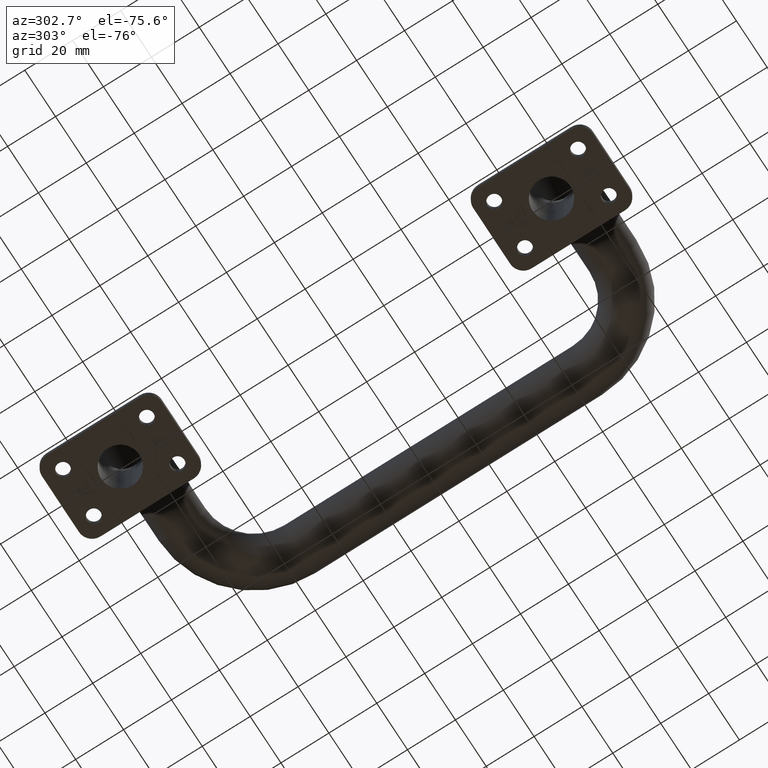
[diagram: clean part render]
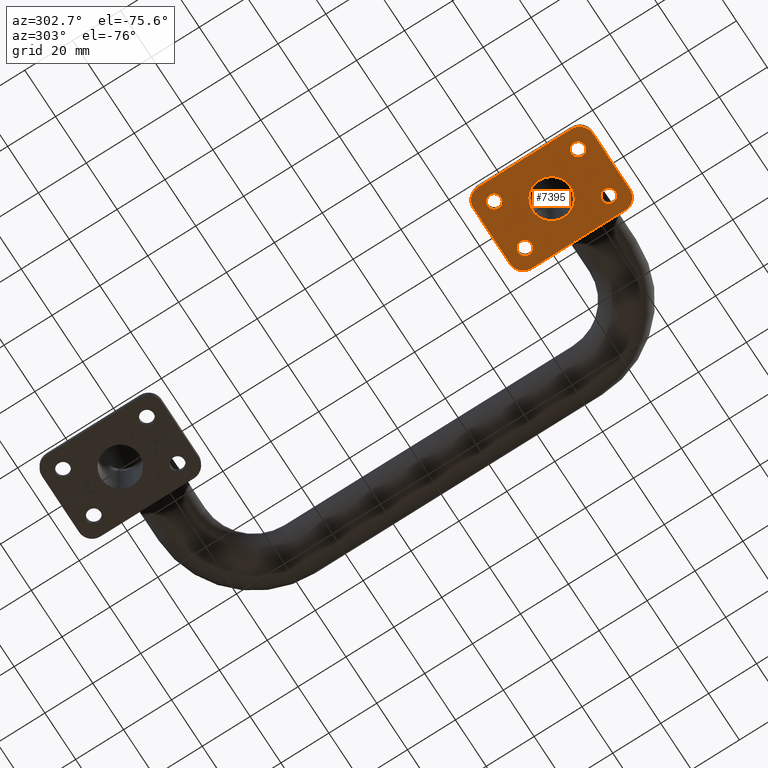
[diagram: same view with one face highlighted and labeled with its STEP entity id]
A machine part, auxiliary view. The second image highlights one B-rep face of the part: STEP entity #7395.
In plain terms, the highlighted planar face has unit normal (-0, 0, 1).
Its self-contained STEP definition (entity closure, byte-faithful):
#149 = DIRECTION ( 'NONE',  ( 1.000000000000000000, 0.000000000000000000, 0.000000000000000000 ) ) ;
#242 = ORIENTED_EDGE ( 'NONE', *, *, #3521, .T. ) ;
#325 = EDGE_CURVE ( 'NONE', #1543, #6372, #3266, .T. ) ;
#493 = CARTESIAN_POINT ( 'NONE',  ( -1.393068780271001328E-15, -90.00000000000000000, 1.249000902703300950E-14 ) ) ;
#517 = CARTESIAN_POINT ( 'NONE',  ( -1.393068780271001328E-15, -90.00000000000000000, 1.249000902703300950E-14 ) ) ;
#519 = EDGE_CURVE ( 'NONE', #9737, #9792, #2941, .T. ) ;
#527 = DIRECTION ( 'NONE',  ( 0.000000000000000000, 1.387778780781445676E-16, 1.000000000000000000 ) ) ;
#555 = ORIENTED_EDGE ( 'NONE', *, *, #5367, .T. ) ;
#642 = DIRECTION ( 'NONE',  ( -0.000000000000000000, 1.387778780781445676E-16, 1.000000000000000000 ) ) ;
#657 = FACE_BOUND ( 'NONE', #2100, .T. ) ;
#725 = VERTEX_POINT ( 'NONE', #9029 ) ;
#744 = ORIENTED_EDGE ( 'NONE', *, *, #6889, .T. ) ;
#785 = VERTEX_POINT ( 'NONE', #2916 ) ;
#910 = AXIS2_PLACEMENT_3D ( 'NONE', #6845, #6941, #8381 ) ;
#920 = EDGE_LOOP ( 'NONE', ( #1130, #1210, #7603, #7582, #9967, #7893, #8713, #6164 ) ) ;
#942 = DIRECTION ( 'NONE',  ( -1.000000000000000000, 0.000000000000000000, 0.000000000000000000 ) ) ;
#1021 = DIRECTION ( 'NONE',  ( -0.000000000000000000, 1.387778780781445676E-16, 1.000000000000000000 ) ) ;
#1101 = EDGE_CURVE ( 'NONE', #725, #9116, #7396, .T. ) ;
#1130 = ORIENTED_EDGE ( 'NONE', *, *, #3905, .F. ) ;
#1144 = AXIS2_PLACEMENT_3D ( 'NONE', #2763, #9041, #5903 ) ;
#1179 = ORIENTED_EDGE ( 'NONE', *, *, #2748, .T. ) ;
#1210 = ORIENTED_EDGE ( 'NONE', *, *, #8468, .F. ) ;
#1212 = DIRECTION ( 'NONE',  ( 1.000000000000000000, 0.000000000000000000, 0.000000000000000000 ) ) ;
#1260 = CIRCLE ( 'NONE', #910, 5.500000000000000000 ) ;
#1275 = CARTESIAN_POINT ( 'NONE',  ( -12.00000000000001066, -70.50000000000000000, 9.783840404509192012E-15 ) ) ;
#1357 = CARTESIAN_POINT ( 'NONE',  ( 12.79999999999999183, -72.49999999999998579, 1.006139616066547957E-14 ) ) ;
#1525 = CIRCLE ( 'NONE', #4496, 5.500000000000000000 ) ;
#1543 = VERTEX_POINT ( 'NONE', #4742 ) ;
#1640 = FACE_OUTER_BOUND ( 'NONE', #920, .T. ) ;
#1662 = DIRECTION ( 'NONE',  ( 1.000000000000000000, 0.000000000000000000, 0.000000000000000000 ) ) ;
#1809 = DIRECTION ( 'NONE',  ( -1.000000000000000000, 0.000000000000000000, 0.000000000000000000 ) ) ;
#1922 = CARTESIAN_POINT ( 'NONE',  ( 9.999999999999998224, -107.4999999999999858, 1.491862189340053786E-14 ) ) ;
#1979 = VERTEX_POINT ( 'NONE', #6712 ) ;
#1983 = CARTESIAN_POINT ( 'NONE',  ( 12.79999999999999538, -107.4999999999999858, 1.491862189340053786E-14 ) ) ;
#1988 = CARTESIAN_POINT ( 'NONE',  ( 17.50000000000000000, -114.9999999999999858, 1.595945597898662527E-14 ) ) ;
#2035 = DIRECTION ( 'NONE',  ( -0.000000000000000000, 1.387778780781445676E-16, 1.000000000000000000 ) ) ;
#2068 = DIRECTION ( 'NONE',  ( -1.000000000000000000, 0.000000000000000000, 0.000000000000000000 ) ) ;
#2100 = EDGE_LOOP ( 'NONE', ( #4458, #3031 ) ) ;
#2146 = LINE ( 'NONE', #6370, #6222 ) ;
#2194 = ORIENTED_EDGE ( 'NONE', *, *, #5421, .T. ) ;
#2398 = AXIS2_PLACEMENT_3D ( 'NONE', #3277, #2593, #1809 ) ;
#2463 = CIRCLE ( 'NONE', #6104, 2.799999999999997158 ) ;
#2496 = EDGE_CURVE ( 'NONE', #9792, #9737, #7069, .T. ) ;
#2593 = DIRECTION ( 'NONE',  ( -0.000000000000000000, 1.387778780781445676E-16, 1.000000000000000000 ) ) ;
#2645 = VERTEX_POINT ( 'NONE', #8662 ) ;
#2748 = EDGE_CURVE ( 'NONE', #3466, #5409, #9002, .T. ) ;
#2763 = CARTESIAN_POINT ( 'NONE',  ( -10.00000000000000178, -107.4999999999999858, 1.491862189340053786E-14 ) ) ;
#2857 = VERTEX_POINT ( 'NONE', #3899 ) ;
#2916 = CARTESIAN_POINT ( 'NONE',  ( 12.00000000000000000, -114.9999999999999858, 1.595945597898662527E-14 ) ) ;
#2941 = CIRCLE ( 'NONE', #7353, 2.799999999999997158 ) ;
#2961 = AXIS2_PLACEMENT_3D ( 'NONE', #517, #2035, #7449 ) ;
#3031 = ORIENTED_EDGE ( 'NONE', *, *, #519, .T. ) ;
#3119 = AXIS2_PLACEMENT_3D ( 'NONE', #4754, #7818, #149 ) ;
#3266 = CIRCLE ( 'NONE', #2398, 2.799999999999997602 ) ;
#3277 = CARTESIAN_POINT ( 'NONE',  ( 9.999999999999994671, -72.49999999999998579, 1.006139616066547957E-14 ) ) ;
#3329 = CARTESIAN_POINT ( 'NONE',  ( 9.999999999999998224, -107.4999999999999858, 1.491862189340053786E-14 ) ) ;
#3431 = DIRECTION ( 'NONE',  ( -1.000000000000000000, 0.000000000000000000, 0.000000000000000000 ) ) ;
#3436 = CARTESIAN_POINT ( 'NONE',  ( 17.49999999999999645, -64.99999999999998579, 9.020562075079395313E-15 ) ) ;
#3466 = VERTEX_POINT ( 'NONE', #6623 ) ;
#3521 = EDGE_CURVE ( 'NONE', #2857, #2645, #8367, .T. ) ;
#3571 = DIRECTION ( 'NONE',  ( 1.000000000000000000, 0.000000000000000000, 0.000000000000000000 ) ) ;
#3781 = EDGE_CURVE ( 'NONE', #8009, #785, #5258, .T. ) ;
#3836 = EDGE_LOOP ( 'NONE', ( #1179, #744 ) ) ;
#3842 = AXIS2_PLACEMENT_3D ( 'NONE', #8641, #1021, #942 ) ;
#3899 = CARTESIAN_POINT ( 'NONE',  ( 8.000000000000000000, -90.00000000000000000, 1.249000902703300950E-14 ) ) ;
#3905 = EDGE_CURVE ( 'NONE', #1979, #9603, #6700, .T. ) ;
#4039 = CIRCLE ( 'NONE', #9310, 5.500000000000000000 ) ;
#4100 = EDGE_CURVE ( 'NONE', #5015, #7943, #2146, .T. ) ;
#4109 = AXIS2_PLACEMENT_3D ( 'NONE', #8757, #4278, #8085 ) ;
#4220 = DIRECTION ( 'NONE',  ( 0.000000000000000000, 1.387778780781445676E-16, 1.000000000000000000 ) ) ;
#4226 = DIRECTION ( 'NONE',  ( -0.000000000000000000, 1.387778780781445676E-16, 1.000000000000000000 ) ) ;
#4278 = DIRECTION ( 'NONE',  ( -0.000000000000000000, 1.387778780781445676E-16, 1.000000000000000000 ) ) ;
#4283 = CIRCLE ( 'NONE', #9172, 8.000000000000001776 ) ;
#4417 = EDGE_LOOP ( 'NONE', ( #6033, #2194 ) ) ;
#4458 = ORIENTED_EDGE ( 'NONE', *, *, #2496, .T. ) ;
#4496 = AXIS2_PLACEMENT_3D ( 'NONE', #1275, #4220, #5086 ) ;
#4616 = FACE_BOUND ( 'NONE', #4417, .T. ) ;
#4703 = CARTESIAN_POINT ( 'NONE',  ( -12.00000000000000178, -109.4999999999999858, 1.519617764955682699E-14 ) ) ;
#4742 = CARTESIAN_POINT ( 'NONE',  ( 7.199999999999997513, -72.49999999999998579, 1.006139616066547957E-14 ) ) ;
#4754 = CARTESIAN_POINT ( 'NONE',  ( 12.00000000000000000, -109.4999999999999858, 1.519617764955682699E-14 ) ) ;
#4785 = EDGE_CURVE ( 'NONE', #5613, #8009, #4039, .T. ) ;
#4895 = CARTESIAN_POINT ( 'NONE',  ( -12.00000000000001066, -64.99999999999998579, 9.020562075079395313E-15 ) ) ;
#4959 = DIRECTION ( 'NONE',  ( -0.000000000000000000, 1.387778780781445676E-16, 1.000000000000000000 ) ) ;
#5015 = VERTEX_POINT ( 'NONE', #7298 ) ;
#5086 = DIRECTION ( 'NONE',  ( 1.000000000000000000, 0.000000000000000000, 0.000000000000000000 ) ) ;
#5095 = CARTESIAN_POINT ( 'NONE',  ( -7.200000000000007283, -72.49999999999998579, 1.006139616066547957E-14 ) ) ;
#5113 = PLANE ( 'NONE',  #2961 ) ;
#5258 = LINE ( 'NONE', #1988, #6923 ) ;
#5323 = EDGE_CURVE ( 'NONE', #8294, #5613, #7856, .T. ) ;
#5347 = EDGE_CURVE ( 'NONE', #785, #5015, #5481, .T. ) ;
#5367 = EDGE_CURVE ( 'NONE', #2645, #2857, #4283, .T. ) ;
#5393 = AXIS2_PLACEMENT_3D ( 'NONE', #1922, #7963, #8807 ) ;
#5409 = VERTEX_POINT ( 'NONE', #1983 ) ;
#5421 = EDGE_CURVE ( 'NONE', #9116, #725, #2463, .T. ) ;
#5481 = CIRCLE ( 'NONE', #3119, 5.500000000000001776 ) ;
#5613 = VERTEX_POINT ( 'NONE', #6843 ) ;
#5664 = AXIS2_PLACEMENT_3D ( 'NONE', #3329, #4959, #6474 ) ;
#5838 = DIRECTION ( 'NONE',  ( 1.000000000000000000, 0.000000000000000000, 0.000000000000000000 ) ) ;
#5903 = DIRECTION ( 'NONE',  ( -1.000000000000000000, 0.000000000000000000, 0.000000000000000000 ) ) ;
#6029 = CARTESIAN_POINT ( 'NONE',  ( -10.00000000000000533, -72.49999999999998579, 1.006139616066547957E-14 ) ) ;
#6033 = ORIENTED_EDGE ( 'NONE', *, *, #1101, .T. ) ;
#6081 = CARTESIAN_POINT ( 'NONE',  ( 17.49999999999999645, -70.50000000000000000, 9.783840404509192012E-15 ) ) ;
#6104 = AXIS2_PLACEMENT_3D ( 'NONE', #7287, #4226, #3431 ) ;
#6164 = ORIENTED_EDGE ( 'NONE', *, *, #6683, .F. ) ;
#6203 = VECTOR ( 'NONE', #7787, 1000.000000000000000 ) ;
#6222 = VECTOR ( 'NONE', #8770, 1000.000000000000000 ) ;
#6246 = DIRECTION ( 'NONE',  ( 0.000000000000000000, 1.387778780781445676E-16, 1.000000000000000000 ) ) ;
#6370 = CARTESIAN_POINT ( 'NONE',  ( 17.50000000000000000, -114.9999999999999858, 1.595945597898662527E-14 ) ) ;
#6372 = VERTEX_POINT ( 'NONE', #1357 ) ;
#6474 = DIRECTION ( 'NONE',  ( -1.000000000000000000, 0.000000000000000000, 0.000000000000000000 ) ) ;
#6623 = CARTESIAN_POINT ( 'NONE',  ( 7.200000000000001066, -107.4999999999999858, 1.491862189340053786E-14 ) ) ;
#6660 = FACE_BOUND ( 'NONE', #7043, .T. ) ;
#6683 = EDGE_CURVE ( 'NONE', #9603, #8294, #1525, .T. ) ;
#6693 = CARTESIAN_POINT ( 'NONE',  ( -17.50000000000000711, -70.50000000000000000, 9.783840404509192012E-15 ) ) ;
#6700 = LINE ( 'NONE', #3436, #7766 ) ;
#6712 = CARTESIAN_POINT ( 'NONE',  ( 11.99999999999999467, -64.99999999999998579, 9.020562075079395313E-15 ) ) ;
#6843 = CARTESIAN_POINT ( 'NONE',  ( -17.50000000000000000, -109.4999999999999858, 1.519617764955682699E-14 ) ) ;
#6845 = CARTESIAN_POINT ( 'NONE',  ( 11.99999999999999467, -70.50000000000000000, 9.783840404509192012E-15 ) ) ;
#6889 = EDGE_CURVE ( 'NONE', #5409, #3466, #9798, .T. ) ;
#6923 = VECTOR ( 'NONE', #1212, 1000.000000000000000 ) ;
#6933 = ORIENTED_EDGE ( 'NONE', *, *, #325, .T. ) ;
#6941 = DIRECTION ( 'NONE',  ( 0.000000000000000000, 1.387778780781445676E-16, 1.000000000000000000 ) ) ;
#7043 = EDGE_LOOP ( 'NONE', ( #242, #555 ) ) ;
#7069 = CIRCLE ( 'NONE', #3842, 2.799999999999997158 ) ;
#7101 = CARTESIAN_POINT ( 'NONE',  ( -7.200000000000003730, -107.4999999999999858, 1.491862189340053786E-14 ) ) ;
#7287 = CARTESIAN_POINT ( 'NONE',  ( -10.00000000000000178, -107.4999999999999858, 1.491862189340053786E-14 ) ) ;
#7298 = CARTESIAN_POINT ( 'NONE',  ( 17.50000000000000000, -109.4999999999999858, 1.519617764955682699E-14 ) ) ;
#7322 = EDGE_CURVE ( 'NONE', #6372, #1543, #8935, .T. ) ;
#7353 = AXIS2_PLACEMENT_3D ( 'NONE', #6029, #642, #2068 ) ;
#7395 = ADVANCED_FACE ( 'NONE', ( #6660, #657, #8325, #4616, #8818, #1640 ), #5113, .F. ) ;
#7396 = CIRCLE ( 'NONE', #1144, 2.799999999999997158 ) ;
#7449 = DIRECTION ( 'NONE',  ( 1.000000000000000000, 0.000000000000000000, 0.000000000000000000 ) ) ;
#7582 = ORIENTED_EDGE ( 'NONE', *, *, #5347, .F. ) ;
#7603 = ORIENTED_EDGE ( 'NONE', *, *, #4100, .F. ) ;
#7766 = VECTOR ( 'NONE', #9602, 1000.000000000000000 ) ;
#7787 = DIRECTION ( 'NONE',  ( 1.387778780781445676E-16, -1.000000000000000000, 1.387778780781445676E-16 ) ) ;
#7818 = DIRECTION ( 'NONE',  ( 0.000000000000000000, 1.387778780781445676E-16, 1.000000000000000000 ) ) ;
#7856 = LINE ( 'NONE', #9370, #6203 ) ;
#7893 = ORIENTED_EDGE ( 'NONE', *, *, #4785, .F. ) ;
#7943 = VERTEX_POINT ( 'NONE', #6081 ) ;
#7963 = DIRECTION ( 'NONE',  ( -0.000000000000000000, 1.387778780781445676E-16, 1.000000000000000000 ) ) ;
#8009 = VERTEX_POINT ( 'NONE', #8457 ) ;
#8010 = AXIS2_PLACEMENT_3D ( 'NONE', #493, #8835, #3571 ) ;
#8085 = DIRECTION ( 'NONE',  ( -1.000000000000000000, 0.000000000000000000, 0.000000000000000000 ) ) ;
#8110 = ORIENTED_EDGE ( 'NONE', *, *, #7322, .T. ) ;
#8294 = VERTEX_POINT ( 'NONE', #6693 ) ;
#8325 = FACE_BOUND ( 'NONE', #9534, .T. ) ;
#8367 = CIRCLE ( 'NONE', #8010, 8.000000000000001776 ) ;
#8381 = DIRECTION ( 'NONE',  ( 1.000000000000000000, 0.000000000000000000, 0.000000000000000000 ) ) ;
#8457 = CARTESIAN_POINT ( 'NONE',  ( -12.00000000000000355, -114.9999999999999858, 1.595945597898662527E-14 ) ) ;
#8468 = EDGE_CURVE ( 'NONE', #7943, #1979, #1260, .T. ) ;
#8578 = CARTESIAN_POINT ( 'NONE',  ( -1.393068780271001328E-15, -90.00000000000000000, 1.249000902703300950E-14 ) ) ;
#8641 = CARTESIAN_POINT ( 'NONE',  ( -10.00000000000000533, -72.49999999999998579, 1.006139616066547957E-14 ) ) ;
#8662 = CARTESIAN_POINT ( 'NONE',  ( -8.000000000000003553, -90.00000000000000000, 1.249000902703300950E-14 ) ) ;
#8713 = ORIENTED_EDGE ( 'NONE', *, *, #5323, .F. ) ;
#8757 = CARTESIAN_POINT ( 'NONE',  ( 9.999999999999994671, -72.49999999999998579, 1.006139616066547957E-14 ) ) ;
#8770 = DIRECTION ( 'NONE',  ( -1.387778780781445676E-16, 1.000000000000000000, -1.387778780781445676E-16 ) ) ;
#8807 = DIRECTION ( 'NONE',  ( -1.000000000000000000, 0.000000000000000000, 0.000000000000000000 ) ) ;
#8818 = FACE_BOUND ( 'NONE', #3836, .T. ) ;
#8835 = DIRECTION ( 'NONE',  ( 0.000000000000000000, 1.387778780781445676E-16, 1.000000000000000000 ) ) ;
#8935 = CIRCLE ( 'NONE', #4109, 2.799999999999997602 ) ;
#9002 = CIRCLE ( 'NONE', #5393, 2.799999999999997602 ) ;
#9029 = CARTESIAN_POINT ( 'NONE',  ( -12.79999999999999893, -107.4999999999999858, 1.491862189340053786E-14 ) ) ;
#9041 = DIRECTION ( 'NONE',  ( -0.000000000000000000, 1.387778780781445676E-16, 1.000000000000000000 ) ) ;
#9116 = VERTEX_POINT ( 'NONE', #7101 ) ;
#9172 = AXIS2_PLACEMENT_3D ( 'NONE', #8578, #527, #5838 ) ;
#9310 = AXIS2_PLACEMENT_3D ( 'NONE', #4703, #6246, #1662 ) ;
#9370 = CARTESIAN_POINT ( 'NONE',  ( -17.50000000000000000, -114.9999999999999858, 1.595945597898662527E-14 ) ) ;
#9534 = EDGE_LOOP ( 'NONE', ( #6933, #8110 ) ) ;
#9602 = DIRECTION ( 'NONE',  ( -1.000000000000000000, 0.000000000000000000, 0.000000000000000000 ) ) ;
#9603 = VERTEX_POINT ( 'NONE', #4895 ) ;
#9737 = VERTEX_POINT ( 'NONE', #5095 ) ;
#9792 = VERTEX_POINT ( 'NONE', #9894 ) ;
#9798 = CIRCLE ( 'NONE', #5664, 2.799999999999997602 ) ;
#9894 = CARTESIAN_POINT ( 'NONE',  ( -12.80000000000000249, -72.49999999999998579, 1.006139616066547957E-14 ) ) ;
#9967 = ORIENTED_EDGE ( 'NONE', *, *, #3781, .F. ) ;